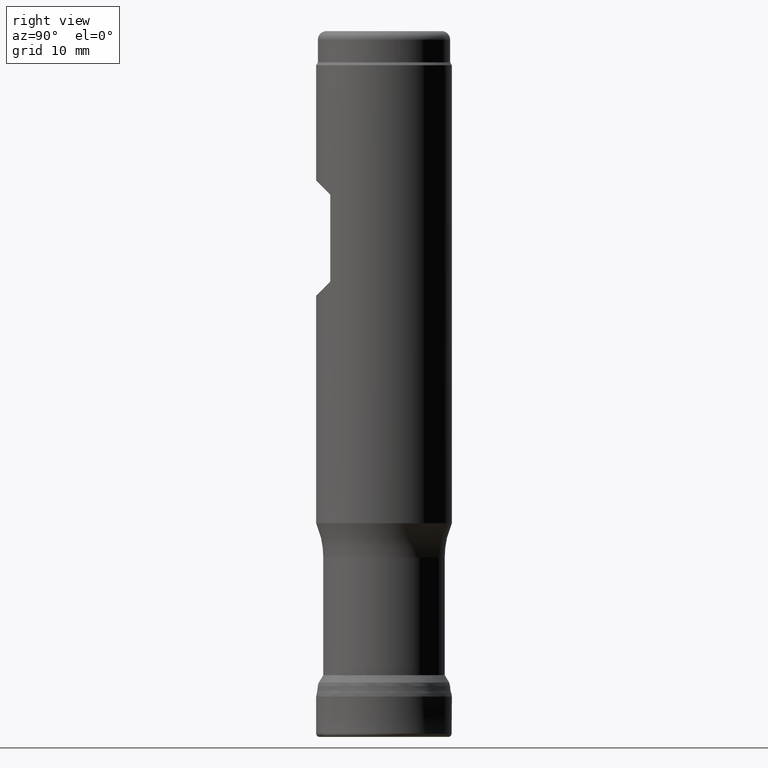
[diagram: clean part render]
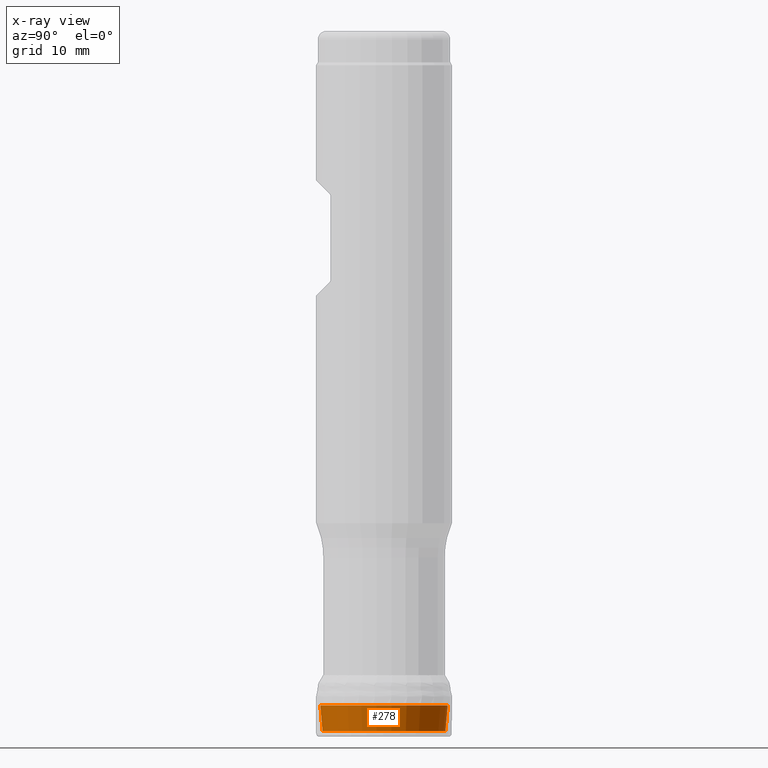
[diagram: x-ray — body ghosted, one internal face saturated and labeled with its STEP entity id]
A machine part, right view, then the same camera in x-ray: the body is ghosted and one INTERNAL B-rep face — a face not visible from any outside direction — is saturated and labeled: STEP entity #278.
In plain terms, the highlighted conical surface has half-angle 5 deg.
Its self-contained STEP definition (entity closure, byte-faithful):
#192=CONICAL_SURFACE('',#705,7.47969080152967,5.00000000000002);
#199=FACE_BOUND('',#336,.T.);
#200=FACE_BOUND('',#337,.T.);
#278=ADVANCED_FACE('',(#199,#200),#192,.T.);
#336=EDGE_LOOP('',(#420));
#337=EDGE_LOOP('',(#421));
#420=ORIENTED_EDGE('',*,*,#570,.T.);
#421=ORIENTED_EDGE('',*,*,#571,.T.);
#522=VERTEX_POINT('',#1155);
#523=VERTEX_POINT('',#1157);
#570=EDGE_CURVE('',#522,#522,#621,.T.);
#571=EDGE_CURVE('',#523,#523,#622,.T.);
#621=CIRCLE('',#703,7.45208257445736);
#622=CIRCLE('',#704,7.1894531840038);
#703=AXIS2_PLACEMENT_3D('',#1154,#775,#776);
#704=AXIS2_PLACEMENT_3D('',#1156,#777,#778);
#705=AXIS2_PLACEMENT_3D('',#1158,#779,#780);
#775=DIRECTION('',(0.,-1.17145536458252E-15,-1.));
#776=DIRECTION('',(0.,1.,-1.16391858158062E-15));
#777=DIRECTION('',(0.,1.17145536458252E-15,1.));
#778=DIRECTION('',(0.,1.,-1.1762754035596E-15));
#779=DIRECTION('',(0.,1.17145536458252E-15,1.));
#780=DIRECTION('',(0.,-1.,2.38375630722633E-15));
#1154=CARTESIAN_POINT('',(0.,4.31615292749363E-15,3.68443652057694));
#1155=CARTESIAN_POINT('',(0.,7.45208257445736,3.68443652057693));
#1156=CARTESIAN_POINT('',(0.,7.9959894272859E-16,0.682568851450474));
#1157=CARTESIAN_POINT('',(0.,7.1894531840038,0.682568851450466));
#1158=CARTESIAN_POINT('',(0.,4.6858214583301E-15,4.));